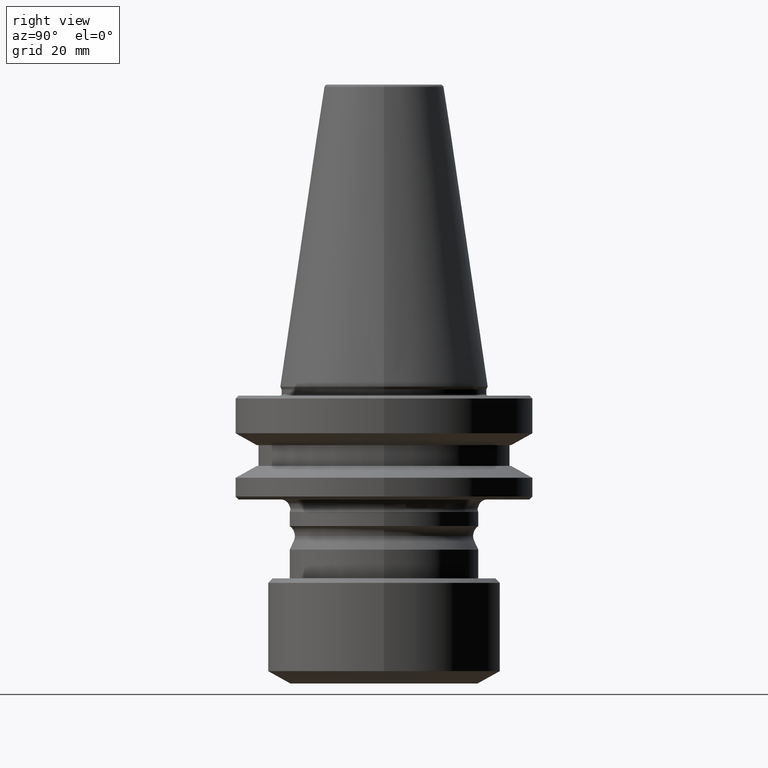
[diagram: clean part render]
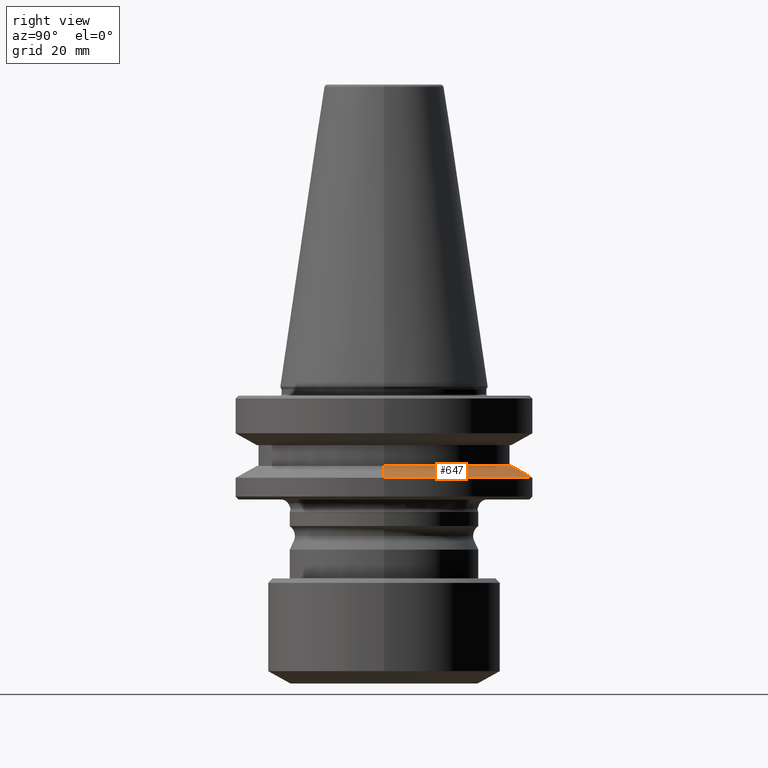
[diagram: same view with one face highlighted and labeled with its STEP entity id]
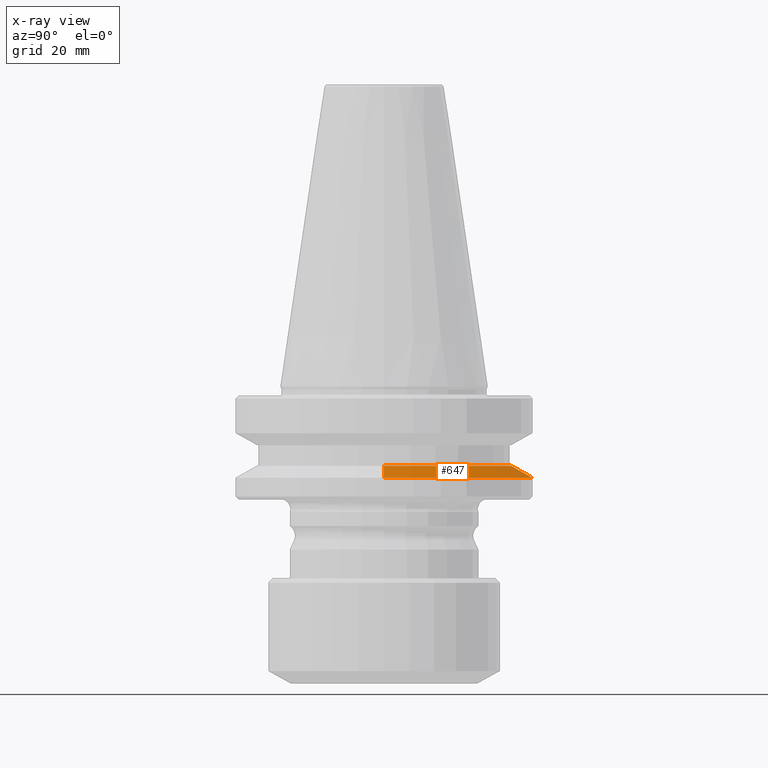
[diagram: x-ray of the same camera — body ghosted, the highlighted face saturated]
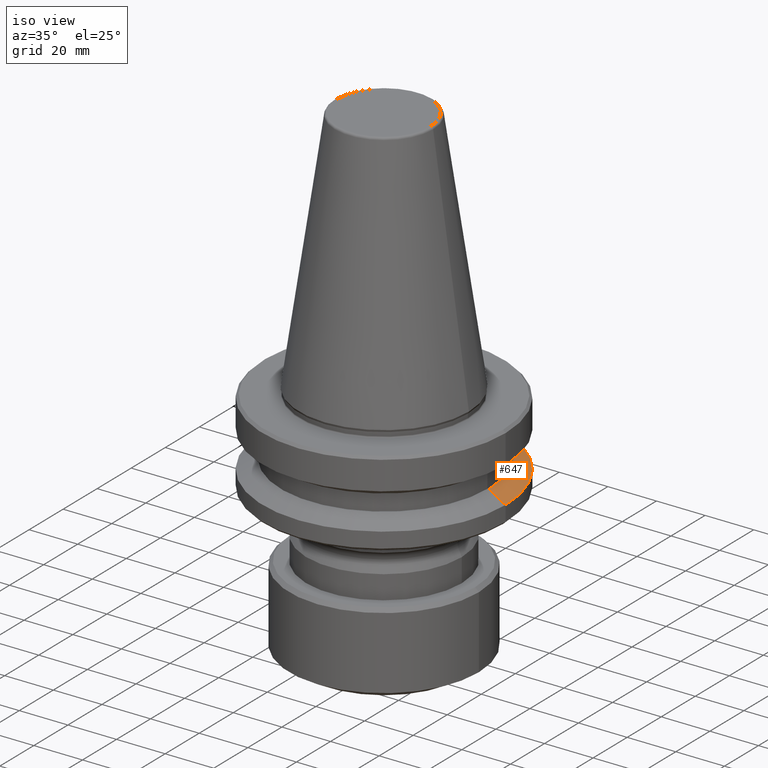
[diagram: same view with one face highlighted and labeled with its STEP entity id]
A machine part, right view. The second image highlights one B-rep face of the part: STEP entity #647.
The next image is the same camera in x-ray: the body ghosted, the highlighted face saturated — about 0% of this face is hidden behind the body in this view.
A second angle (iso view) of the same face is appended — the face is thin or edge-on in the first view.
In plain terms, the highlighted conical surface has half-angle 60 deg.
Its self-contained STEP definition (entity closure, byte-faithful):
#42 = FACE_OUTER_BOUND ( 'NONE', #488, .T. ) ;
#91 = VERTEX_POINT ( 'NONE', #1383 ) ;
#136 = VECTOR ( 'NONE', #369, 1000.000000000000000 ) ;
#140 = VERTEX_POINT ( 'NONE', #1297 ) ;
#254 = ORIENTED_EDGE ( 'NONE', *, *, #268, .F. ) ;
#262 = DIRECTION ( 'NONE',  ( -0.0000000000000000000, -0.0000000000000000000, 1.000000000000000000 ) ) ;
#268 = EDGE_CURVE ( 'NONE', #272, #140, #349, .T. ) ;
#272 = VERTEX_POINT ( 'NONE', #299 ) ;
#285 = AXIS2_PLACEMENT_3D ( 'NONE', #1352, #811, #905 ) ;
#299 = CARTESIAN_POINT ( 'NONE',  ( -43.07217782648964300, 0.0000000000000000000, -26.70000000000061400 ) ) ;
#313 = CARTESIAN_POINT ( 'NONE',  ( 43.07217782648964300, 5.699027233244199500E-015, -26.70000000000061400 ) ) ;
#349 = LINE ( 'NONE', #531, #1041 ) ;
#369 = DIRECTION ( 'NONE',  ( 0.8660254037844390400, 1.060575238724907400E-016, -0.4999999999999993300 ) ) ;
#433 = CIRCLE ( 'NONE', #760, 43.07217782648964300 ) ;
#474 = ORIENTED_EDGE ( 'NONE', *, *, #1050, .T. ) ;
#488 = EDGE_LOOP ( 'NONE', ( #1139, #474, #614, #254 ) ) ;
#531 = CARTESIAN_POINT ( 'NONE',  ( -50.00000000000015600, 0.0000000000000000000, -30.69977999677475800 ) ) ;
#614 = ORIENTED_EDGE ( 'NONE', *, *, #748, .T. ) ;
#647 = ADVANCED_FACE ( 'NONE', ( #42 ), #902, .T. ) ;
#676 = DIRECTION ( 'NONE',  ( 1.000000000000000000, 0.0000000000000000000, 0.0000000000000000000 ) ) ;
#703 = LINE ( 'NONE', #1074, #136 ) ;
#722 = CIRCLE ( 'NONE', #893, 50.00000000000015600 ) ;
#748 = EDGE_CURVE ( 'NONE', #91, #140, #722, .T. ) ;
#760 = AXIS2_PLACEMENT_3D ( 'NONE', #1249, #994, #799 ) ;
#799 = DIRECTION ( 'NONE',  ( 1.000000000000000000, 0.0000000000000000000, 0.0000000000000000000 ) ) ;
#811 = DIRECTION ( 'NONE',  ( 0.0000000000000000000, 0.0000000000000000000, -1.000000000000000000 ) ) ;
#866 = VERTEX_POINT ( 'NONE', #313 ) ;
#893 = AXIS2_PLACEMENT_3D ( 'NONE', #894, #262, #676 ) ;
#894 = CARTESIAN_POINT ( 'NONE',  ( 0.0000000000000000000, 0.0000000000000000000, -30.69977999677475800 ) ) ;
#902 = CONICAL_SURFACE ( 'NONE', #285, 50.00000000000015600, 1.047197551196598500 ) ;
#905 = DIRECTION ( 'NONE',  ( -1.000000000000000000, 0.0000000000000000000, 0.0000000000000000000 ) ) ;
#994 = DIRECTION ( 'NONE',  ( -0.0000000000000000000, -0.0000000000000000000, 1.000000000000000000 ) ) ;
#1041 = VECTOR ( 'NONE', #1231, 1000.000000000000000 ) ;
#1050 = EDGE_CURVE ( 'NONE', #866, #91, #703, .T. ) ;
#1054 = EDGE_CURVE ( 'NONE', #866, #272, #433, .T. ) ;
#1074 = CARTESIAN_POINT ( 'NONE',  ( 50.00000000000015600, 6.123233995736785000E-015, -30.69977999677475800 ) ) ;
#1139 = ORIENTED_EDGE ( 'NONE', *, *, #1054, .F. ) ;
#1231 = DIRECTION ( 'NONE',  ( -0.8660254037844390400, 0.0000000000000000000, -0.4999999999999993300 ) ) ;
#1249 = CARTESIAN_POINT ( 'NONE',  ( 0.0000000000000000000, 0.0000000000000000000, -26.70000000000061400 ) ) ;
#1297 = CARTESIAN_POINT ( 'NONE',  ( -50.00000000000015600, 6.123233995736785000E-015, -30.69977999677475800 ) ) ;
#1352 = CARTESIAN_POINT ( 'NONE',  ( 0.0000000000000000000, 0.0000000000000000000, -30.69977999677475800 ) ) ;
#1383 = CARTESIAN_POINT ( 'NONE',  ( 50.00000000000015600, 0.0000000000000000000, -30.69977999677475800 ) ) ;